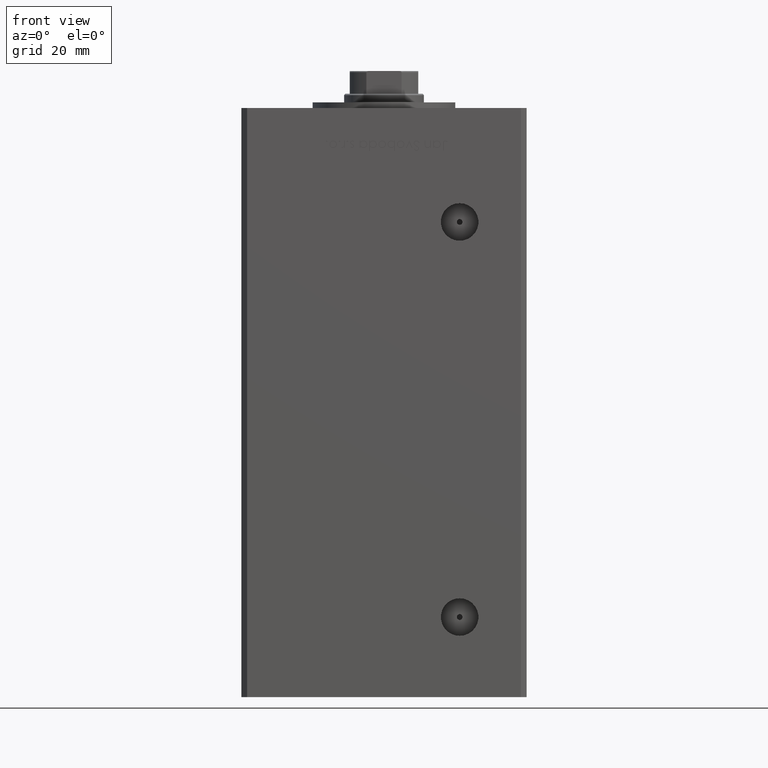
[diagram: clean part render]
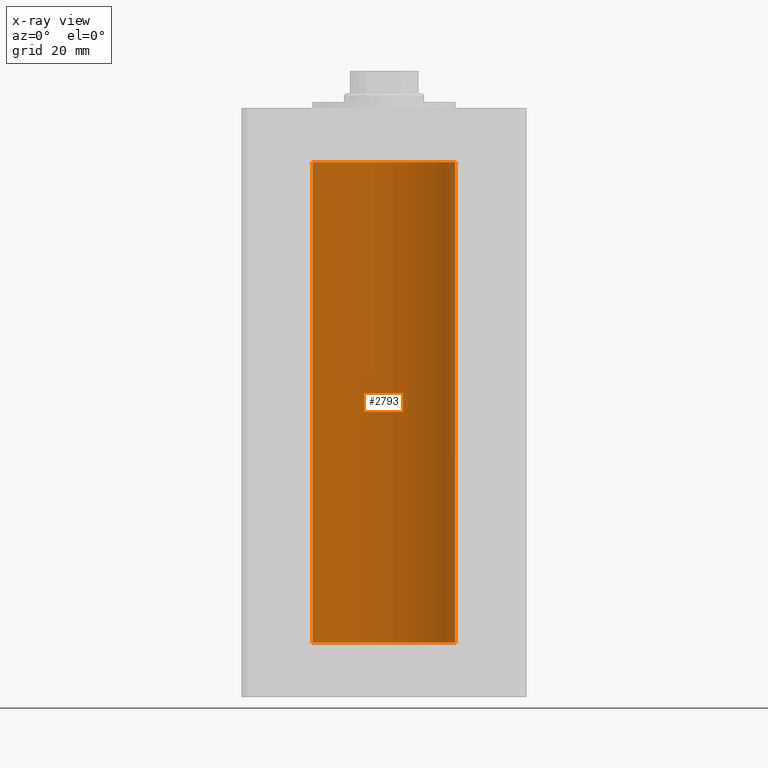
[diagram: x-ray — body ghosted, one internal face saturated and labeled with its STEP entity id]
A machine part, front view, then the same camera in x-ray: the body is ghosted and one INTERNAL B-rep face — a face not visible from any outside direction — is saturated and labeled: STEP entity #2793.
In plain terms, the highlighted cylindrical surface (partial cylindrical patch) has radius 25 mm, axis along (-0, -0, -1).
Its self-contained STEP definition (entity closure, byte-faithful):
#707 = VERTEX_POINT ( 'NONE', #25249 ) ;
#2041 = ORIENTED_EDGE ( 'NONE', *, *, #12726, .F. ) ;
#2793 = ADVANCED_FACE ( 'NONE', ( #9655 ), #25484, .F. ) ;
#6798 = CIRCLE ( 'NONE', #32919, 25.00000000000000000 ) ;
#7119 = CARTESIAN_POINT ( 'NONE',  ( 25.00000000000000000, 3.061616997868383043E-15, 0.000000000000000000 ) ) ;
#7979 = DIRECTION ( 'NONE',  ( 1.000000000000000000, 0.000000000000000000, 0.000000000000000000 ) ) ;
#8880 = DIRECTION ( 'NONE',  ( -0.000000000000000000, -0.000000000000000000, -1.000000000000000000 ) ) ;
#9350 = VERTEX_POINT ( 'NONE', #16490 ) ;
#9404 = VECTOR ( 'NONE', #48447, 1000.000000000000000 ) ;
#9651 = VERTEX_POINT ( 'NONE', #7119 ) ;
#9655 = FACE_OUTER_BOUND ( 'NONE', #41094, .T. ) ;
#10021 = EDGE_CURVE ( 'NONE', #707, #40199, #24439, .T. ) ;
#12726 = EDGE_CURVE ( 'NONE', #9651, #40199, #6798, .T. ) ;
#16261 = CARTESIAN_POINT ( 'NONE',  ( -25.00000000000000000, 0.000000000000000000, 168.5000000000000000 ) ) ;
#16490 = CARTESIAN_POINT ( 'NONE',  ( 25.00000000000000000, 3.061616997868383043E-15, 168.5000000000000000 ) ) ;
#17968 = ORIENTED_EDGE ( 'NONE', *, *, #37059, .T. ) ;
#19946 = EDGE_CURVE ( 'NONE', #9350, #9651, #31849, .T. ) ;
#24439 = LINE ( 'NONE', #16261, #9404 ) ;
#25249 = CARTESIAN_POINT ( 'NONE',  ( -25.00000000000000000, 0.000000000000000000, 168.5000000000000000 ) ) ;
#25484 = CYLINDRICAL_SURFACE ( 'NONE', #29430, 25.00000000000000000 ) ;
#28418 = CARTESIAN_POINT ( 'NONE',  ( 25.00000000000000000, 3.061616997868383043E-15, 168.5000000000000000 ) ) ;
#28798 = CARTESIAN_POINT ( 'NONE',  ( 0.000000000000000000, 0.000000000000000000, 0.000000000000000000 ) ) ;
#29430 = AXIS2_PLACEMENT_3D ( 'NONE', #45025, #8880, #33131 ) ;
#30979 = DIRECTION ( 'NONE',  ( -0.000000000000000000, 0.000000000000000000, 1.000000000000000000 ) ) ;
#31849 = LINE ( 'NONE', #28418, #32376 ) ;
#32376 = VECTOR ( 'NONE', #47698, 1000.000000000000000 ) ;
#32919 = AXIS2_PLACEMENT_3D ( 'NONE', #28798, #30979, #7979 ) ;
#33131 = DIRECTION ( 'NONE',  ( -1.000000000000000000, 0.000000000000000000, 0.000000000000000000 ) ) ;
#33419 = DIRECTION ( 'NONE',  ( -0.000000000000000000, 0.000000000000000000, 1.000000000000000000 ) ) ;
#35047 = CIRCLE ( 'NONE', #43488, 25.00000000000000000 ) ;
#37059 = EDGE_CURVE ( 'NONE', #9350, #707, #35047, .T. ) ;
#38435 = DIRECTION ( 'NONE',  ( 1.000000000000000000, 0.000000000000000000, 0.000000000000000000 ) ) ;
#40199 = VERTEX_POINT ( 'NONE', #45261 ) ;
#41094 = EDGE_LOOP ( 'NONE', ( #47310, #17968, #44985, #2041 ) ) ;
#43488 = AXIS2_PLACEMENT_3D ( 'NONE', #45582, #33419, #38435 ) ;
#44985 = ORIENTED_EDGE ( 'NONE', *, *, #10021, .T. ) ;
#45025 = CARTESIAN_POINT ( 'NONE',  ( 0.000000000000000000, 0.000000000000000000, 168.5000000000000000 ) ) ;
#45261 = CARTESIAN_POINT ( 'NONE',  ( -25.00000000000000000, 0.000000000000000000, 0.000000000000000000 ) ) ;
#45582 = CARTESIAN_POINT ( 'NONE',  ( 0.000000000000000000, 0.000000000000000000, 168.5000000000000000 ) ) ;
#47310 = ORIENTED_EDGE ( 'NONE', *, *, #19946, .F. ) ;
#47698 = DIRECTION ( 'NONE',  ( -0.000000000000000000, -0.000000000000000000, -1.000000000000000000 ) ) ;
#48447 = DIRECTION ( 'NONE',  ( -0.000000000000000000, -0.000000000000000000, -1.000000000000000000 ) ) ;